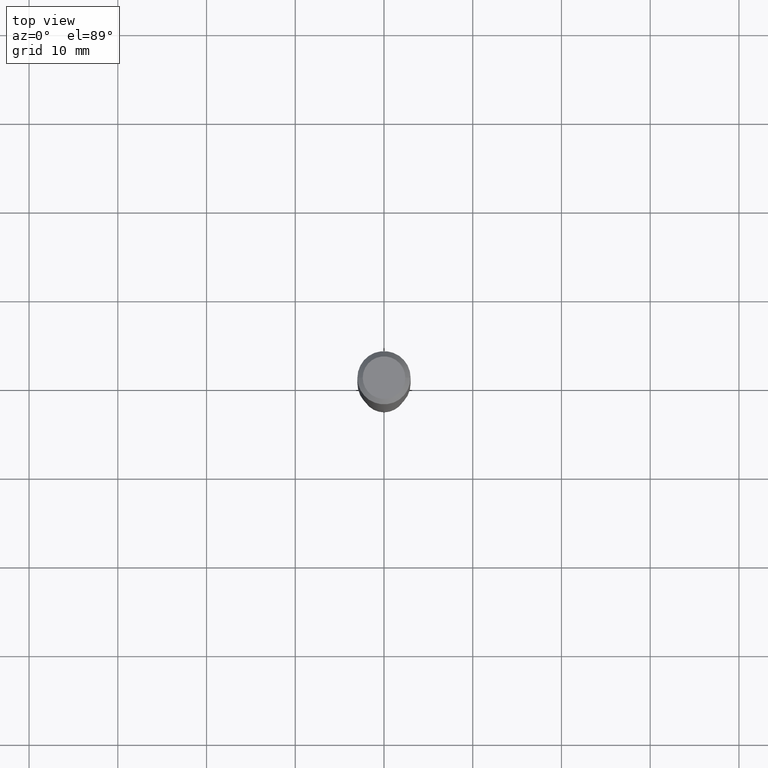
[diagram: clean part render]
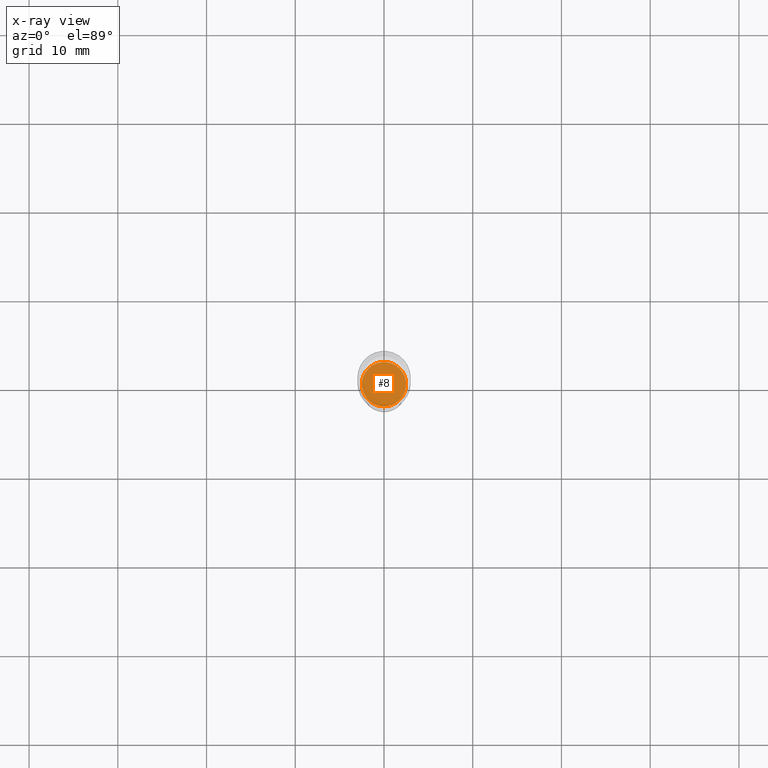
[diagram: x-ray — body ghosted, one internal face saturated and labeled with its STEP entity id]
A machine part, top view, then the same camera in x-ray: the body is ghosted and one INTERNAL B-rep face — a face not visible from any outside direction — is saturated and labeled: STEP entity #8.
In plain terms, the highlighted planar face has unit normal (0, -0, -1).
Its self-contained STEP definition (entity closure, byte-faithful):
#8 = ADVANCED_FACE ( 'NONE', ( #382 ), #390, .F. ) ;
#31 = CARTESIAN_POINT ( 'NONE',  ( 4.139934141990818357E-29, -5.910728758527561864E-15, -1.692900000000000071 ) ) ;
#32 = ORIENTED_EDGE ( 'NONE', *, *, #237, .T. ) ;
#51 = AXIS2_PLACEMENT_3D ( 'NONE', #198, #346, #316 ) ;
#88 = CARTESIAN_POINT ( 'NONE',  ( -6.874726756181714407E-16, -0.09845000000000590779, -1.692899999999999849 ) ) ;
#91 = DIRECTION ( 'NONE',  ( -6.982962677686265922E-15, -1.000000000000000000, 2.774858297271979165E-15 ) ) ;
#98 = VERTEX_POINT ( 'NONE', #88 ) ;
#122 = CIRCLE ( 'NONE', #391, 0.09844999999999999585 ) ;
#156 = EDGE_CURVE ( 'NONE', #98, #413, #122, .T. ) ;
#195 = AXIS2_PLACEMENT_3D ( 'NONE', #31, #228, #307 ) ;
#198 = CARTESIAN_POINT ( 'NONE',  ( 4.139934141990818357E-29, -5.910728758527561864E-15, -1.692900000000000071 ) ) ;
#228 = DIRECTION ( 'NONE',  ( -2.445509088617800403E-29, 3.491423652106837223E-15, 1.000000000000000000 ) ) ;
#237 = EDGE_CURVE ( 'NONE', #413, #98, #246, .T. ) ;
#246 = CIRCLE ( 'NONE', #195, 0.09844999999999999585 ) ;
#307 = DIRECTION ( 'NONE',  ( -6.982962677686265922E-15, -1.000000000000000000, 2.774858297271979165E-15 ) ) ;
#311 = EDGE_LOOP ( 'NONE', ( #342, #32 ) ) ;
#316 = DIRECTION ( 'NONE',  ( 6.982962677686265922E-15, 1.000000000000000000, -3.491423652106837223E-15 ) ) ;
#327 = DIRECTION ( 'NONE',  ( -2.445509088617800403E-29, 3.491423652106837223E-15, 1.000000000000000000 ) ) ;
#342 = ORIENTED_EDGE ( 'NONE', *, *, #156, .T. ) ;
#346 = DIRECTION ( 'NONE',  ( 2.445509088617800122E-29, -3.491423652106837223E-15, -1.000000000000000000 ) ) ;
#369 = CARTESIAN_POINT ( 'NONE',  ( 4.139934141990818357E-29, -5.910728758527561864E-15, -1.692900000000000071 ) ) ;
#382 = FACE_OUTER_BOUND ( 'NONE', #311, .T. ) ;
#390 = PLANE ( 'NONE',  #51 ) ;
#391 = AXIS2_PLACEMENT_3D ( 'NONE', #369, #327, #91 ) ;
#413 = VERTEX_POINT ( 'NONE', #425 ) ;
#425 = CARTESIAN_POINT ( 'NONE',  ( 6.995293233558962077E-16, 0.09844999999999408391, -1.692900000000000293 ) ) ;